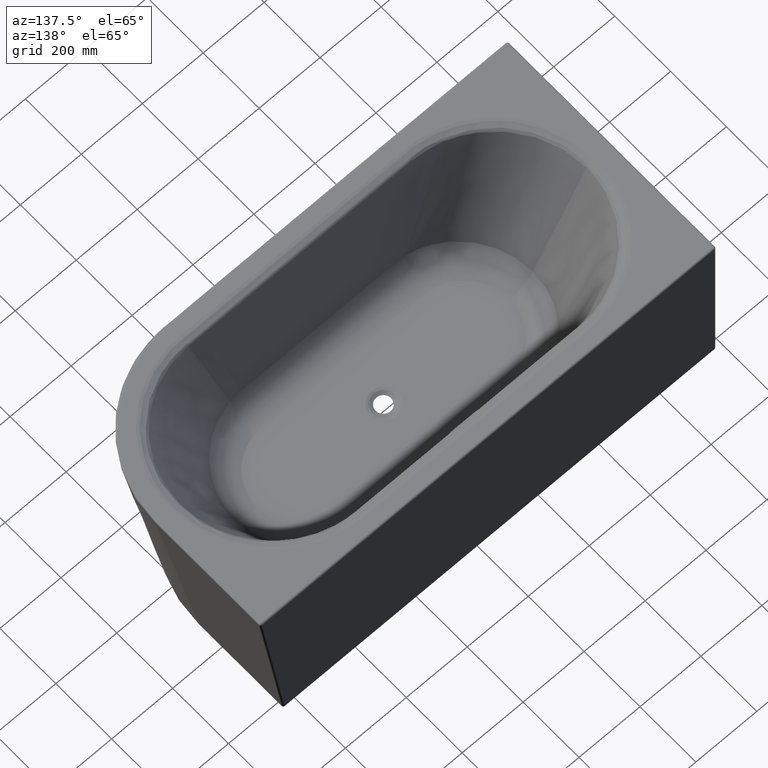
[diagram: clean part render]
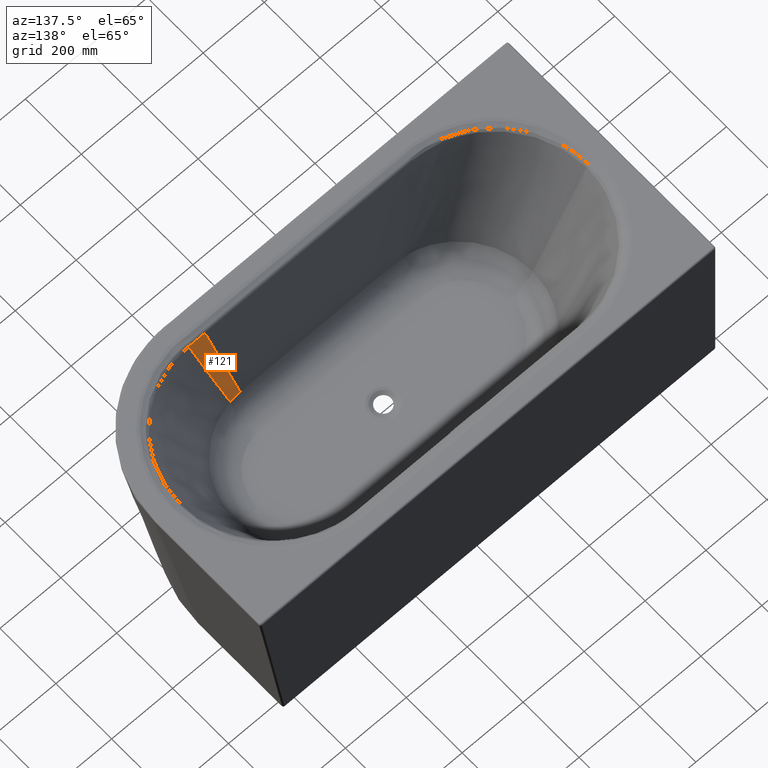
[diagram: same view with one face highlighted and labeled with its STEP entity id]
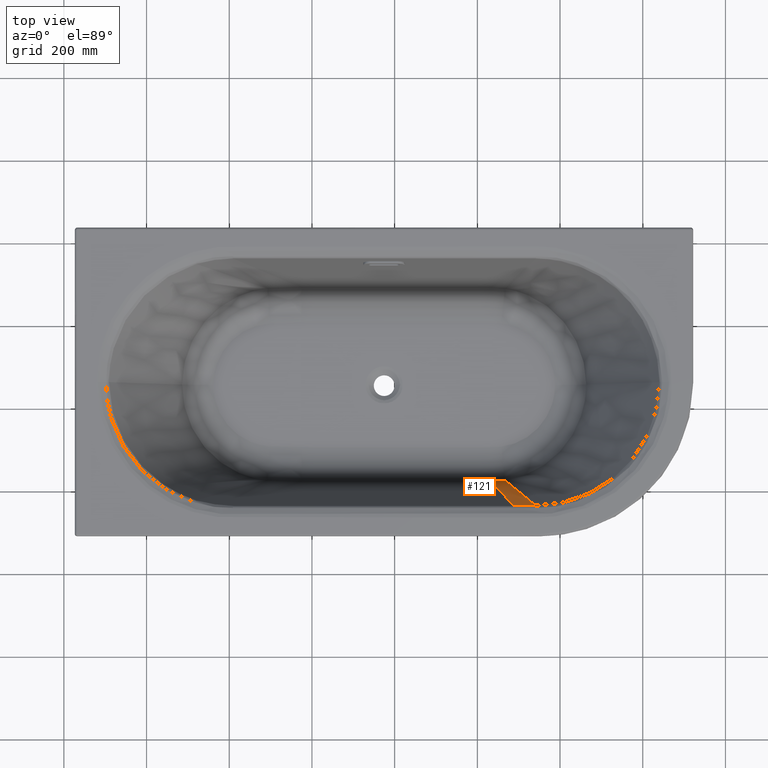
[diagram: same view with one face highlighted and labeled with its STEP entity id]
A machine part, auxiliary view. The second image highlights one B-rep face of the part: STEP entity #121.
A second angle (top view) of the same face is appended — the face is thin or edge-on in the first view.
In plain terms, the highlighted face is a freeform B-spline surface patch.
Its self-contained STEP definition (entity closure, byte-faithful):
#121=ADVANCED_FACE('',(#220),#2831,.T.);
#220=FACE_OUTER_BOUND('',#318,.T.);
#318=EDGE_LOOP('',(#603,#604,#605,#606));
#603=ORIENTED_EDGE('',*,*,#2458,.T.);
#604=ORIENTED_EDGE('',*,*,#2450,.F.);
#605=ORIENTED_EDGE('',*,*,#2433,.F.);
#606=ORIENTED_EDGE('',*,*,#2457,.F.);
#1029=B_SPLINE_CURVE_WITH_KNOTS('',1,(#7426,#7427),.UNSPECIFIED.,.F.,.F.,
(2,2),(12.1147693021921,38.2091527483175),.UNSPECIFIED.);
#1058=B_SPLINE_CURVE_WITH_KNOTS('',1,(#7933,#7934),.UNSPECIFIED.,.F.,.F.,
(2,2),(-379.527583859244,-6.71369137787853),.UNSPECIFIED.);
#1074=B_SPLINE_CURVE_WITH_KNOTS('',1,(#8124,#8125),.UNSPECIFIED.,.F.,.F.,
(2,2),(6.38428606996287,373.387949827281),.UNSPECIFIED.);
#1077=B_SPLINE_CURVE_WITH_KNOTS('',3,(#8139,#8140,#8141,#8142),
 .UNSPECIFIED.,.F.,.F.,(4,4),(-0.979602718965291,52.3274165202901),
 .UNSPECIFIED.);
#1078=B_SPLINE_CURVE_WITH_KNOTS('',1,(#8143,#8144),.UNSPECIFIED.,.F.,.F.,
(2,2),(-379.527583859244,-6.71369137787853),.UNSPECIFIED.);
#1079=B_SPLINE_CURVE_WITH_KNOTS('',3,(#8145,#8146,#8147,#8148),
 .UNSPECIFIED.,.F.,.F.,(4,4),(12.1147693021921,38.2091527483175),
 .UNSPECIFIED.);
#1080=B_SPLINE_CURVE_WITH_KNOTS('',1,(#8149,#8150),.UNSPECIFIED.,.F.,.F.,
(2,2),(6.38428606996287,373.387949827281),.UNSPECIFIED.);
#1123=B_SPLINE_CURVE_WITH_KNOTS('',1,(#8528,#8529),.UNSPECIFIED.,.F.,.F.,
(2,2),(-0.979602718965291,52.3274165202901),.UNSPECIFIED.);
#1468=PCURVE('',#2822,#1887);
#1493=PCURVE('',#2826,#1912);
#1509=PCURVE('',#2830,#1928);
#1512=PCURVE('',#2831,#1931);
#1513=PCURVE('',#2831,#1932);
#1514=PCURVE('',#2831,#1933);
#1515=PCURVE('',#2831,#1934);
#1555=PCURVE('',#2841,#1974);
#1887=DEFINITIONAL_REPRESENTATION('',(#1029),#9406);
#1912=DEFINITIONAL_REPRESENTATION('',(#1058),#9406);
#1928=DEFINITIONAL_REPRESENTATION('',(#1074),#9406);
#1931=DEFINITIONAL_REPRESENTATION('',(#1077),#9406);
#1932=DEFINITIONAL_REPRESENTATION('',(#1078),#9406);
#1933=DEFINITIONAL_REPRESENTATION('',(#1079),#9406);
#1934=DEFINITIONAL_REPRESENTATION('',(#1080),#9406);
#1974=DEFINITIONAL_REPRESENTATION('',(#1123),#9406);
#2222=SURFACE_CURVE('',#2599,(#1468,#1514),.PCURVE_S1.);
#2239=SURFACE_CURVE('',#2612,(#1493,#1513),.PCURVE_S1.);
#2246=SURFACE_CURVE('',#2619,(#1509,#1515),.PCURVE_S1.);
#2247=SURFACE_CURVE('',#2620,(#1512,#1555),.PCURVE_S1.);
#2433=EDGE_CURVE('',#2739,#2719,#2222,.T.);
#2450=EDGE_CURVE('',#2719,#2742,#2239,.T.);
#2457=EDGE_CURVE('',#2751,#2739,#2246,.T.);
#2458=EDGE_CURVE('',#2751,#2742,#2247,.T.);
#2599=(
BOUNDED_CURVE()
B_SPLINE_CURVE(3,(#7422,#7423,#7424,#7425),.UNSPECIFIED.,.F.,.F.)
B_SPLINE_CURVE_WITH_KNOTS((4,4),(12.1147693021921,38.2091527483175),
 .UNSPECIFIED.)
CURVE()
GEOMETRIC_REPRESENTATION_ITEM()
RATIONAL_B_SPLINE_CURVE((1.,1.,1.,1.))
REPRESENTATION_ITEM('')
);
#2612=(
BOUNDED_CURVE()
B_SPLINE_CURVE(3,(#7929,#7930,#7931,#7932),.UNSPECIFIED.,.F.,.F.)
B_SPLINE_CURVE_WITH_KNOTS((4,4),(-379.527583859244,-6.71369137787853),
 .UNSPECIFIED.)
CURVE()
GEOMETRIC_REPRESENTATION_ITEM()
RATIONAL_B_SPLINE_CURVE((1.,1.00021977918265,1.00021762306038,1.))
REPRESENTATION_ITEM('')
);
#2619=(
BOUNDED_CURVE()
B_SPLINE_CURVE(3,(#8120,#8121,#8122,#8123),.UNSPECIFIED.,.F.,.F.)
B_SPLINE_CURVE_WITH_KNOTS((4,4),(6.38428606996287,373.387949827281),
 .UNSPECIFIED.)
CURVE()
GEOMETRIC_REPRESENTATION_ITEM()
RATIONAL_B_SPLINE_CURVE((1.,1.,1.,1.))
REPRESENTATION_ITEM('')
);
#2620=(
BOUNDED_CURVE()
B_SPLINE_CURVE(3,(#8132,#8133,#8134,#8135,#8136,#8137,#8138),
 .UNSPECIFIED.,.F.,.F.)
B_SPLINE_CURVE_WITH_KNOTS((4,3,4),(-0.979602718965291,52.3273861621422,
52.3274165202901),.UNSPECIFIED.)
CURVE()
GEOMETRIC_REPRESENTATION_ITEM()
RATIONAL_B_SPLINE_CURVE((1.,1.,1.,1.,1.,1.,1.))
REPRESENTATION_ITEM('')
);
#2719=VERTEX_POINT('',#6231);
#2739=VERTEX_POINT('',#6251);
#2742=VERTEX_POINT('',#6254);
#2751=VERTEX_POINT('',#6263);
#2822=(
BOUNDED_SURFACE()
B_SPLINE_SURFACE(3,2,((#4455,#4456,#4457),(#4458,#4459,#4460),(#4461,#4462,
#4463),(#4464,#4465,#4466),(#4467,#4468,#4469),(#4470,#4471,#4472),(#4473,
#4474,#4475),(#4476,#4477,#4478),(#4479,#4480,#4481),(#4482,#4483,#4484),
(#4485,#4486,#4487),(#4488,#4489,#4490),(#4491,#4492,#4493),(#4494,#4495,
#4496),(#4497,#4498,#4499),(#4500,#4501,#4502),(#4503,#4504,#4505),(#4506,
#4507,#4508),(#4509,#4510,#4511),(#4512,#4513,#4514),(#4515,#4516,#4517),
(#4518,#4519,#4520),(#4521,#4522,#4523),(#4524,#4525,#4526),(#4527,#4528,
#4529),(#4530,#4531,#4532)),.UNSPECIFIED.,.F.,.F.,.F.)
B_SPLINE_SURFACE_WITH_KNOTS((4,3,1,1,1,1,1,1,1,1,1,1,1,1,1,1,1,1,1,1,1,
4),(3,3),(12.1147693021921,38.2091527483174,55.1910125806395,73.8966371319957,
93.0717649887582,112.70046540281,122.670711407725,132.735130360314,142.886183654308,
153.116677376567,173.78976316178,194.706389820964,215.82330922363,237.099306177229,
258.493764284309,279.965843923478,301.473650978593,322.973212502871,333.70536331993,
344.41767445482,355.104154109812,365.759682211979),(0.,116.89587312621),
 .UNSPECIFIED.)
GEOMETRIC_REPRESENTATION_ITEM()
RATIONAL_B_SPLINE_SURFACE(((1.,0.775061215074656,1.),(1.,0.776922832493108,
1.),(1.,0.779924663050197,1.),(1.,0.784076274614174,1.),(1.,0.786776891731534,
1.),(1.,0.793472260936466,1.),(0.999999999999999,0.806908764269654,0.999999999999999),
(1.,0.823943476809896,1.),(0.999999999999999,0.839931369592252,0.999999999999999),
(1.,0.85295715253168,1.),(0.999999999999999,0.862636022556947,0.999999999999999),
(1.,0.871943971368377,1.),(0.999999999999998,0.883662656249406,0.999999999999998),
(1.,0.896569757011963,1.),(0.999999999999998,0.908955898071859,0.999999999999998),
(1.,0.918547923285195,1.),(1.,0.925733329244874,1.),(1.,0.930876154572528,
1.),(0.999999999999998,0.934228401286043,0.999999999999998),(1.,0.935910012685785,
1.),(1.,0.935879562130628,1.),(1.,0.934834164430608,1.),(1.,0.933441129463605,
1.),(1.,0.93130366864407,1.),(1.,0.929202656473321,1.),(1.,0.927901273772272,
1.)))
REPRESENTATION_ITEM('')
SURFACE()
);
#2826=(
BOUNDED_SURFACE()
B_SPLINE_SURFACE(2,3,((#4720,#4721,#4722,#4723),(#4724,#4725,#4726,#4727),
(#4728,#4729,#4730,#4731)),.UNSPECIFIED.,.F.,.F.,.F.)
B_SPLINE_SURFACE_WITH_KNOTS((3,3),(4,4),(2845.68657327669,3262.70781254618),
(0.,452.313264858247),.UNSPECIFIED.)
GEOMETRIC_REPRESENTATION_ITEM()
RATIONAL_B_SPLINE_SURFACE(((1.,0.98246427923247,0.964928558464939,0.947392837697409),
(0.707106781186549,0.716846225423616,0.726585669660683,0.736325113897749),
(1.,1.,1.,1.)))
REPRESENTATION_ITEM('')
SURFACE()
);
#2830=(
BOUNDED_SURFACE()
B_SPLINE_SURFACE(2,3,((#4768,#4769,#4770,#4771),(#4772,#4773,#4774,#4775),
(#4776,#4777,#4778,#4779)),.UNSPECIFIED.,.F.,.F.,.F.)
B_SPLINE_SURFACE_WITH_KNOTS((3,3),(4,4),(2211.11514135507,2799.4756295773),
(0.,452.313264858247),.UNSPECIFIED.)
GEOMETRIC_REPRESENTATION_ITEM()
RATIONAL_B_SPLINE_SURFACE(((1.,1.,1.,1.),(1.,1.,1.,1.),(1.,1.,1.,1.)))
REPRESENTATION_ITEM('')
SURFACE()
);
#2831=(
BOUNDED_SURFACE()
B_SPLINE_SURFACE(2,3,((#4780,#4781,#4782,#4783),(#4784,#4785,#4786,#4787),
(#4788,#4789,#4790,#4791)),.UNSPECIFIED.,.F.,.F.,.F.)
B_SPLINE_SURFACE_WITH_KNOTS((3,3),(4,4),(2799.4756295773,2845.68657327669),
(0.,452.313264858247),.UNSPECIFIED.)
GEOMETRIC_REPRESENTATION_ITEM()
RATIONAL_B_SPLINE_SURFACE(((1.,1.,1.,1.),(1.,0.990260555762933,0.980521111525865,
0.970781667288798),(1.,0.98246427923247,0.964928558464939,0.947392837697409)))
REPRESENTATION_ITEM('')
SURFACE()
);
#2841=(
BOUNDED_SURFACE()
B_SPLINE_SURFACE(2,3,((#5089,#5090,#5091,#5092,#5093,#5094,#5095,#5096,
#5097,#5098,#5099,#5100,#5101,#5102,#5103),(#5104,#5105,#5106,#5107,#5108,
#5109,#5110,#5111,#5112,#5113,#5114,#5115,#5116,#5117,#5118),(#5119,#5120,
#5121,#5122,#5123,#5124,#5125,#5126,#5127,#5128,#5129,#5130,#5131,#5132,
#5133)),.UNSPECIFIED.,.F.,.F.,.F.)
B_SPLINE_SURFACE_WITH_KNOTS((3,3),(4,3,1,1,1,1,1,1,1,1,4),(0.,10.3764041123323),
(-0.979602718965282,52.3273861621423,53.9721127548226,55.6168393475029,
58.8986220349499,62.1803063826948,65.4619907304397,71.898437345004,78.3348839595683,
91.2025036199055,104.070123280243),.UNSPECIFIED.)
GEOMETRIC_REPRESENTATION_ITEM()
RATIONAL_B_SPLINE_SURFACE(((1.,1.,1.,1.,0.999999999999998,1.,1.,1.,0.999999999999999,
1.,1.,1.,1.,1.,1.),(0.89197406843018,0.891988301045494,0.892419806795783,
0.893320225144893,0.893347786673627,0.893404881144831,0.893519150138617,
0.893659947041809,0.8938264407801,0.894042711961014,0.894304966702367,0.894708443967223,
0.895184799159542,0.895534270119583,0.895700762250825),(1.,1.,1.,1.,0.999999999999998,
1.,1.,1.,0.999999999999999,1.,1.,1.,1.,1.,1.)))
REPRESENTATION_ITEM('')
SURFACE()
);
#4455=CARTESIAN_POINT('',(231.718303176653,-1378.53039934616,-332.122380809212));
#4456=CARTESIAN_POINT('',(231.718303176653,-1364.57099180049,-400.));
#4457=CARTESIAN_POINT('',(231.718303176653,-1295.27282266136,-400.));
#4458=CARTESIAN_POINT('',(243.282853629144,-1378.42874176509,-332.613060611373));
#4459=CARTESIAN_POINT('',(242.775581490851,-1364.1543423711,-400.000000000121));
#4460=CARTESIAN_POINT('',(240.416191880062,-1295.27266234124,-400.));
#4461=CARTESIAN_POINT('',(254.979931330201,-1377.66812597156,-333.405281471246));
#4462=CARTESIAN_POINT('',(253.903287726671,-1362.92110388676,-400.000000000108));
#4463=CARTESIAN_POINT('',(249.115593548083,-1294.82429025866,-400.));
#4464=CARTESIAN_POINT('',(266.764480352889,-1376.11711504681,-334.511852752897));
#4465=CARTESIAN_POINT('',(265.083866542802,-1360.76349519882,-399.999999999824));
#4466=CARTESIAN_POINT('',(257.762564169679,-1293.87811513253,-400.));
#4467=CARTESIAN_POINT('',(274.432788317258,-1375.10665294758,-335.231828291382));
#4468=CARTESIAN_POINT('',(272.295824382045,-1359.37070758027,-400.000000000105));
#4469=CARTESIAN_POINT('',(263.389565062492,-1293.2621160064,-400.));
#4470=CARTESIAN_POINT('',(290.62288077813,-1372.27630050452,-337.024282725451));
#4471=CARTESIAN_POINT('',(287.381602503371,-1355.65719732618,-399.999999999942));
#4472=CARTESIAN_POINT('',(275.166936466772,-1291.52382587089,-400.));
#4473=CARTESIAN_POINT('',(315.562974912111,-1365.31157694704,-340.673824347243));
#4474=CARTESIAN_POINT('',(310.240877915237,-1347.21769792027,-400.000000000028));
#4475=CARTESIAN_POINT('',(292.982739252157,-1287.30714185601,-400.));
#4476=CARTESIAN_POINT('',(341.349002356894,-1354.68897881659,-345.390825946326));
#4477=CARTESIAN_POINT('',(333.289379881261,-1335.29704799595,-399.999999999984));
#4478=CARTESIAN_POINT('',(311.125281227475,-1281.03056478874,-400.));
#4479=CARTESIAN_POINT('',(362.308369072614,-1342.54547777603,-349.919539075754));
#4480=CARTESIAN_POINT('',(351.620292700407,-1322.59408625745,-400.000000000008));
#4481=CARTESIAN_POINT('',(325.812938060931,-1273.9902218235,-400.));
#4482=CARTESIAN_POINT('',(378.311582311581,-1330.78570121348,-353.675793180906));
#4483=CARTESIAN_POINT('',(365.414228120079,-1310.8997602964,-399.999999999996));
#4484=CARTESIAN_POINT('',(337.150407796452,-1267.17378418525,-400.));
#4485=CARTESIAN_POINT('',(389.837723618239,-1320.94522455173,-356.498737461528));
#4486=CARTESIAN_POINT('',(375.241341714635,-1301.42990853724,-400.));
#4487=CARTESIAN_POINT('',(345.419832560617,-1261.4318136508,-400.));
#4488=CARTESIAN_POINT('',(400.696309941755,-1310.20132766822,-359.244054360829));
#4489=CARTESIAN_POINT('',(384.465464700493,-1291.3445996828,-400.));
#4490=CARTESIAN_POINT('',(353.349698345926,-1255.08822250831,-400.));
#4491=CARTESIAN_POINT('',(414.197755613909,-1294.76012223827,-362.736428494616));
#4492=CARTESIAN_POINT('',(395.889754582012,-1277.18526347893,-400.000000000001));
#4493=CARTESIAN_POINT('',(363.426640276061,-1245.8164403063,-400.));
#4494=CARTESIAN_POINT('',(428.922471871079,-1273.75165907914,-366.641478349016));
#4495=CARTESIAN_POINT('',(408.431537233423,-1258.3315492859,-399.999999999997));
#4496=CARTESIAN_POINT('',(374.864116372097,-1232.814314903,-400.));
#4497=CARTESIAN_POINT('',(442.876660857826,-1246.74885958033,-370.447488605754));
#4498=CARTESIAN_POINT('',(420.522873059581,-1234.37955267393,-400.000000000003));
#4499=CARTESIAN_POINT('',(386.355467768619,-1215.29174311949,-400.));
#4500=CARTESIAN_POINT('',(453.163279167517,-1218.53077471318,-373.430277222572));
#4501=CARTESIAN_POINT('',(429.600297686777,-1209.46062498711,-399.999999999996));
#4502=CARTESIAN_POINT('',(395.380365347544,-1196.15899402136,-400.));
#4503=CARTESIAN_POINT('',(459.847891538252,-1189.59499060588,-375.684913428358));
#4504=CARTESIAN_POINT('',(435.630277717057,-1183.89038836978,-400.000000000001));
#4505=CARTESIAN_POINT('',(401.737092481254,-1175.81609041458,-400.));
#4506=CARTESIAN_POINT('',(463.016661982613,-1160.33238408359,-377.309193395691));
#4507=CARTESIAN_POINT('',(438.595652484036,-1157.96793071454,-399.999999999999));
#4508=CARTESIAN_POINT('',(405.290679645246,-1154.68225316435,-400.));
#4509=CARTESIAN_POINT('',(462.746129837929,-1131.07242298319,-378.372735003778));
#4510=CARTESIAN_POINT('',(438.492734839387,-1131.99010316556,-399.999999999999));
#4511=CARTESIAN_POINT('',(405.961781593102,-1133.18497500112,-400.));
#4512=CARTESIAN_POINT('',(459.100733808432,-1102.10100416668,-378.907674836989));
#4513=CARTESIAN_POINT('',(435.333440295714,-1106.2510058305,-400.000000000017));
#4514=CARTESIAN_POINT('',(403.71918127104,-1111.75875553374,-400.));
#4515=CARTESIAN_POINT('',(453.281791150418,-1078.38713396335,-378.897979406043));
#4516=CARTESIAN_POINT('',(430.169546358537,-1085.22178417415,-400.000000000052));
#4517=CARTESIAN_POINT('',(399.427125062875,-1094.32252269225,-400.));
#4518=CARTESIAN_POINT('',(446.941206964595,-1059.74632381259,-378.565461873865));
#4519=CARTESIAN_POINT('',(424.524370242683,-1068.77414636157,-400.00000000074));
#4520=CARTESIAN_POINT('',(394.551749307765,-1080.85313793159,-400.));
#4521=CARTESIAN_POINT('',(441.327456617536,-1045.94642539326,-378.122942551031));
#4522=CARTESIAN_POINT('',(419.529816640536,-1056.64682298005,-400.000000000872));
#4523=CARTESIAN_POINT('',(390.183226984756,-1071.06622874456,-400.));
#4524=CARTESIAN_POINT('',(434.818708859837,-1032.30547455326,-377.445134700089));
#4525=CARTESIAN_POINT('',(413.759430118739,-1044.72990462657,-399.999999999228));
#4526=CARTESIAN_POINT('',(385.103960269991,-1061.65645476184,-400.));
#4527=CARTESIAN_POINT('',(429.819534883981,-1023.26112959701,-376.780722524141));
#4528=CARTESIAN_POINT('',(409.367974129373,-1036.90325019495,-400.000000000429));
#4529=CARTESIAN_POINT('',(381.235673860661,-1055.67881402554,-400.));
#4530=CARTESIAN_POINT('',(427.126659051725,-1018.72791491063,-376.370131557563));
#4531=CARTESIAN_POINT('',(407.023146954795,-1033.00642740973,-399.999999999996));
#4532=CARTESIAN_POINT('',(379.179007063451,-1052.78271811694,-400.));
#4720=CARTESIAN_POINT('',(342.6080292697,-1444.57099180049,-11.));
#4721=CARTESIAN_POINT('',(313.294364003134,-1418.11344784303,-136.037901005488));
#4722=CARTESIAN_POINT('',(282.915259758152,-1390.69427393077,-265.620448758458));
#4723=CARTESIAN_POINT('',(251.411554464882,-1362.26007233776,-400.));
#4724=CARTESIAN_POINT('',(642.608029269699,-1444.57099180049,-11.));
#4725=CARTESIAN_POINT('',(573.102653816309,-1406.97451045249,-144.190103701325));
#4726=CARTESIAN_POINT('',(505.460633935898,-1370.38594557983,-273.809540812063));
#4727=CARTESIAN_POINT('',(439.6080292697,-1334.76530175336,-400.));
#4728=CARTESIAN_POINT('',(642.6080292697,-1144.57099180049,-11.));
#4729=CARTESIAN_POINT('',(574.941362603033,-1144.57099180049,-140.666666666667));
#4730=CARTESIAN_POINT('',(507.274695936367,-1144.57099180049,-270.333333333333));
#4731=CARTESIAN_POINT('',(439.6080292697,-1144.57099180049,-400.));
#4768=CARTESIAN_POINT('',(-393.3919707303,-1444.57099180049,-11.));
#4769=CARTESIAN_POINT('',(-325.390465639515,-1417.90432513383,-140.666666666667));
#4770=CARTESIAN_POINT('',(-257.38896054873,-1391.23765846716,-270.333333333333));
#4771=CARTESIAN_POINT('',(-189.387455457945,-1364.57099180049,-400.));
#4772=CARTESIAN_POINT('',(-52.1905727881929,-1444.57099180049,-11.));
#4773=CARTESIAN_POINT('',(-29.7569528901694,-1417.90432513383,-140.666666666667));
#4774=CARTESIAN_POINT('',(-7.32333299214596,-1391.23765846716,-270.333333333333));
#4775=CARTESIAN_POINT('',(15.1102869058775,-1364.57099180049,-400.));
#4776=CARTESIAN_POINT('',(289.010825153914,-1444.57099180049,-11.));
#4777=CARTESIAN_POINT('',(265.876559859176,-1417.90432513383,-140.666666666667));
#4778=CARTESIAN_POINT('',(242.742294564438,-1391.23765846716,-270.333333333333));
#4779=CARTESIAN_POINT('',(219.6080292697,-1364.57099180049,-400.));
#4780=CARTESIAN_POINT('',(289.010825153914,-1444.57099180049,-11.));
#4781=CARTESIAN_POINT('',(265.876559859176,-1417.90432513383,-140.666666666667));
#4782=CARTESIAN_POINT('',(242.742294564438,-1391.23765846716,-270.333333333333));
#4783=CARTESIAN_POINT('',(219.6080292697,-1364.57099180049,-400.));
#4784=CARTESIAN_POINT('',(315.809427211807,-1444.57099180049,-11.));
#4785=CARTESIAN_POINT('',(289.596828209696,-1418.42887094448,-138.116062662383));
#4786=CARTESIAN_POINT('',(262.86349356347,-1391.76741455285,-267.757394366673));
#4787=CARTESIAN_POINT('',(235.593750307912,-1364.57099180049,-400.));
#4788=CARTESIAN_POINT('',(342.6080292697,-1444.57099180049,-11.));
#4789=CARTESIAN_POINT('',(313.294364003134,-1418.11344784303,-136.037901005488));
#4790=CARTESIAN_POINT('',(282.915259758152,-1390.69427393077,-265.620448758458));
#4791=CARTESIAN_POINT('',(251.411554464882,-1362.26007233776,-400.));
#5089=CARTESIAN_POINT('',(288.031222437003,-1443.4418122573,-16.4906355287766));
#5090=CARTESIAN_POINT('',(305.796029065398,-1443.44190040933,-16.4902782185484));
#5091=CARTESIAN_POINT('',(323.560468628453,-1443.43256618565,-16.4852275728115));
#5092=CARTESIAN_POINT('',(341.324546406609,-1443.41256265286,-16.4747163726554));
#5093=CARTESIAN_POINT('',(341.872637399631,-1443.41197259787,-16.4742667475892));
#5094=CARTESIAN_POINT('',(342.968814427614,-1443.41056513869,-16.474332226724));
#5095=CARTESIAN_POINT('',(345.158635392738,-1443.40889051781,-16.4686892345206));
#5096=CARTESIAN_POINT('',(347.893979126243,-1443.40907234797,-16.4502143833042));
#5097=CARTESIAN_POINT('',(351.174770062355,-1443.41292508869,-16.4100111867813));
#5098=CARTESIAN_POINT('',(355.506620516335,-1443.42290608927,-16.3329922941331));
#5099=CARTESIAN_POINT('',(360.889131624087,-1443.44443544922,-16.1933019023765));
#5100=CARTESIAN_POINT('',(369.463438628219,-1443.49866755119,-15.8779988689642));
#5101=CARTESIAN_POINT('',(380.174345293206,-1443.60509414818,-15.3105303045467));
#5102=CARTESIAN_POINT('',(388.732798274796,-1443.73473173473,-14.6734996783182));
#5103=CARTESIAN_POINT('',(393.008770690392,-1443.81162468353,-14.3099270967048));
#5104=CARTESIAN_POINT('',(288.031222437003,-1444.57099180049,-11.));
#5105=CARTESIAN_POINT('',(305.797517480909,-1444.57140989264,-10.9998083744339));
#5106=CARTESIAN_POINT('',(323.546018521098,-1444.57199904871,-10.9995383445699));
#5107=CARTESIAN_POINT('',(341.329629296794,-1444.57276245203,-10.9991884513813));
#5108=CARTESIAN_POINT('',(341.879864485908,-1444.57280961133,-10.9990535637448));
#5109=CARTESIAN_POINT('',(342.972682314275,-1444.57270865697,-10.9997518578471));
#5110=CARTESIAN_POINT('',(345.138791390794,-1444.57374146937,-10.9954343904369));
#5111=CARTESIAN_POINT('',(347.850392701517,-1444.57743487828,-10.9787462305415));
#5112=CARTESIAN_POINT('',(351.099819283183,-1444.58572190246,-10.9408880721407));
#5113=CARTESIAN_POINT('',(355.391525295148,-1444.60183926026,-10.8672399268511));
#5114=CARTESIAN_POINT('',(360.723477106161,-1444.63150951227,-10.7322398948595));
#5115=CARTESIAN_POINT('',(369.217223521818,-1444.69975901259,-10.4254726956882));
#5116=CARTESIAN_POINT('',(379.827754745186,-1444.82558891689,-9.87064838172324));
#5117=CARTESIAN_POINT('',(388.309219701315,-1444.9726017359,-9.24555417357474));
#5118=CARTESIAN_POINT('',(392.546787785041,-1445.05857868362,-8.8884075923395));
#5119=CARTESIAN_POINT('',(288.031222437003,-1449.66679477879,-8.6644236349466));
#5120=CARTESIAN_POINT('',(305.800218216472,-1449.66713235202,-8.66426891388415));
#5121=CARTESIAN_POINT('',(323.569216001253,-1449.66525154174,-8.66513095192927));
#5122=CARTESIAN_POINT('',(341.338157034377,-1449.66088058802,-8.66713430571847));
#5123=CARTESIAN_POINT('',(341.889757652704,-1449.66077072371,-8.66707728018798));
#5124=CARTESIAN_POINT('',(342.980750400707,-1449.6603409197,-8.66790407447057));
#5125=CARTESIAN_POINT('',(345.133055699483,-1449.66075757834,-8.66394025120258));
#5126=CARTESIAN_POINT('',(347.830878176719,-1449.66376232259,-8.64793867928224));
#5127=CARTESIAN_POINT('',(351.06183360423,-1449.67135027011,-8.61127675590929));
#5128=CARTESIAN_POINT('',(355.330226408833,-1449.68671337947,-8.53970467028015));
#5129=CARTESIAN_POINT('',(360.632608536591,-1449.7157548725,-8.40819364359978));
#5130=CARTESIAN_POINT('',(369.079626639824,-1449.78364399998,-8.10889050129261));
#5131=CARTESIAN_POINT('',(379.630873385203,-1449.91020082523,-7.56694115691012));
#5132=CARTESIAN_POINT('',(388.061908028273,-1450.05890970676,-6.95605123816611));
#5133=CARTESIAN_POINT('',(392.274259899106,-1450.14598808826,-6.60691897297049));
#6231=CARTESIAN_POINT('',(266.764480352889,-1376.11711504681,-334.511852752897));
#6251=CARTESIAN_POINT('',(231.718303176662,-1378.53039934618,-332.122380809125));
#6254=CARTESIAN_POINT('',(341.32458997009,-1443.41261828842,-16.4745357769076));
#6263=CARTESIAN_POINT('',(288.031222437272,-1443.44181225761,-16.4906355272735));
#7422=CARTESIAN_POINT('',(231.718303176662,-1378.53039934618,-332.122380809125));
#7423=CARTESIAN_POINT('',(243.28285362915,-1378.42874176511,-332.613060611314));
#7424=CARTESIAN_POINT('',(254.979931330204,-1377.66812597157,-333.405281471216));
#7425=CARTESIAN_POINT('',(266.764480352889,-1376.11711504681,-334.511852752897));
#7426=CARTESIAN_POINT('',(12.1147693021921,0.));
#7427=CARTESIAN_POINT('',(38.2091527483175,0.));
#7929=CARTESIAN_POINT('',(266.764480352889,-1376.11711504681,-334.511852752897));
#7930=CARTESIAN_POINT('',(292.358273893978,-1399.21723151729,-225.341124989274));
#7931=CARTESIAN_POINT('',(317.200776411863,-1421.63925741432,-119.37504086841));
#7932=CARTESIAN_POINT('',(341.32458997009,-1443.41261828842,-16.4745357769076));
#7933=CARTESIAN_POINT('',(2845.68657327669,379.527583859244));
#7934=CARTESIAN_POINT('',(2845.68657327669,6.71369137787853));
#8120=CARTESIAN_POINT('',(288.031222437272,-1443.44181225761,-16.4906355272735));
#8121=CARTESIAN_POINT('',(269.260249350402,-1421.80467462046,-121.701217287891));
#8122=CARTESIAN_POINT('',(250.489276263532,-1400.16753698332,-226.911799048508));
#8123=CARTESIAN_POINT('',(231.718303176662,-1378.53039934618,-332.122380809125));
#8124=CARTESIAN_POINT('',(2799.4756295773,6.38428606996363));
#8125=CARTESIAN_POINT('',(2799.4756295773,373.387949827281));
#8132=CARTESIAN_POINT('',(288.031222437272,-1443.44181225761,-16.4906355272735));
#8133=CARTESIAN_POINT('',(305.796033470232,-1443.44191896598,-16.4902180260825));
#8134=CARTESIAN_POINT('',(323.560477437763,-1443.43260329827,-16.4851071906043));
#8135=CARTESIAN_POINT('',(341.324559620308,-1443.41261832106,-16.4745358019073));
#8136=CARTESIAN_POINT('',(341.324569736902,-1443.41261831018,-16.4745357935739));
#8137=CARTESIAN_POINT('',(341.324579853496,-1443.4126182993,-16.4745357852406));
#8138=CARTESIAN_POINT('',(341.32458997009,-1443.41261828842,-16.4745357769076));
#8139=CARTESIAN_POINT('',(2799.4756295773,6.38428607118694));
#8140=CARTESIAN_POINT('',(2814.87920610958,6.50647062864599));
#8141=CARTESIAN_POINT('',(2830.28284710542,6.6180304607871));
#8142=CARTESIAN_POINT('',(2845.68657327669,6.71385068863271));
#8143=CARTESIAN_POINT('',(2845.68657327669,379.527583859244));
#8144=CARTESIAN_POINT('',(2845.68657327669,6.71385068863271));
#8145=CARTESIAN_POINT('',(2799.4756295773,373.387949827352));
#8146=CARTESIAN_POINT('',(2814.89879572995,375.229995061201));
#8147=CARTESIAN_POINT('',(2830.30250304388,377.289095656637));
#8148=CARTESIAN_POINT('',(2845.68657327669,379.527583859244));
#8149=CARTESIAN_POINT('',(2799.4756295773,6.38428607118694));
#8150=CARTESIAN_POINT('',(2799.4756295773,373.387949827352));
#8528=CARTESIAN_POINT('',(0.,-0.979602718965296));
#8529=CARTESIAN_POINT('',(0.,52.3274013412162));
#9406=(
GEOMETRIC_REPRESENTATION_CONTEXT(2)
PARAMETRIC_REPRESENTATION_CONTEXT()
REPRESENTATION_CONTEXT('pspace','')
);